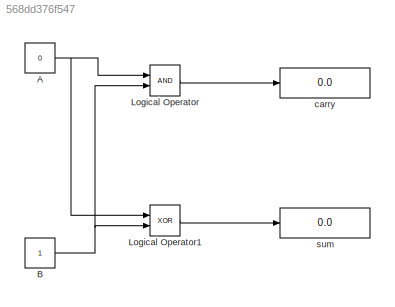
MODEL slx_568dd376f547
KIND model
CONFIG AbsTol = auto
CONFIG EnableMultiTasking = off
CONFIG FixedStep = auto
CONFIG MaxStep = auto
CONFIG MinStep = auto
CONFIG RelTol = 1e-3
CONFIG SampleTimeConstraint = Unconstrained
CONFIG Solver = VariableStepAuto
CONFIG SolverName = VariableStepAuto
CONFIG StartTime = 0.0
CONFIG StopTime = 10.0
BLOCK [Constant] A
  OutDataTypeStr = boolean
  Value = 0
BLOCK [Constant] B
  OutDataTypeStr = boolean
BLOCK [Logic] Logical Operator
  AllPortsSameDT = off
  OutDataTypeStr = boolean
  Ports = [2, 1]
BLOCK [Logic] Logical Operator1
  AllPortsSameDT = off
  Operator = XOR
  OutDataTypeStr = boolean
  Ports = [2, 1]
BLOCK [Display] carry
  Decimation = 1
  Ports = [1]
BLOCK [Display] sum
  Decimation = 1
  Ports = [1]
NET A:1 -> Logical Operator1:1, Logical Operator:1
NET B:1 -> Logical Operator1:2, Logical Operator:2
LINE Logical Operator1:1 -> sum:1
LINE Logical Operator:1 -> carry:1
note: NET lines group one-source signal fan-out (src -> all destinations, sorted); 1:1 wires keep LINE
